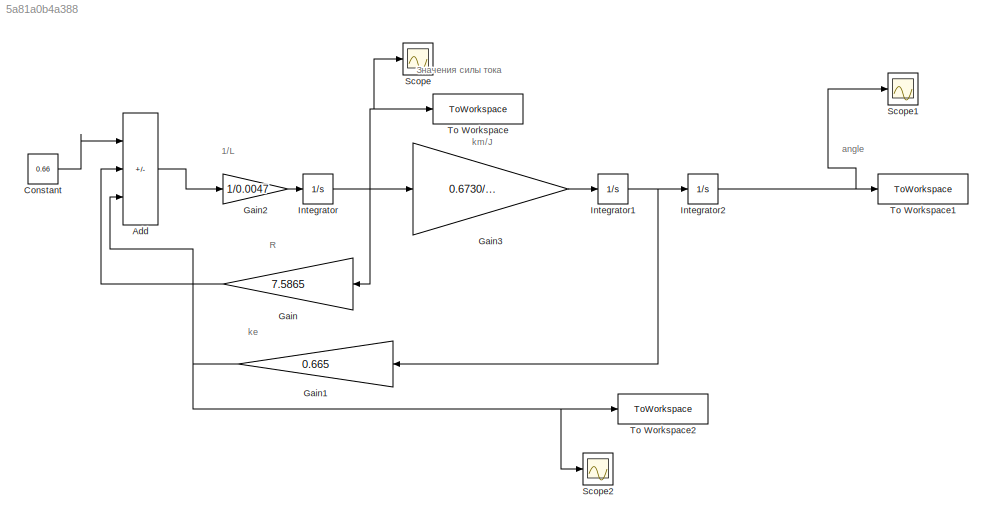
MODEL slx_5a81a0b4a388
KIND model
CONFIG AbsTol = auto
CONFIG EnableMultiTasking = off
CONFIG FixedStep = auto
CONFIG MaxStep = auto
CONFIG MinStep = auto
CONFIG RelTol = 1e-3
CONFIG SampleTimeConstraint = Unconstrained
CONFIG SolverName = VariableStepAuto
CONFIG StartTime = 0.0
CONFIG StopTime = 0.4
BLOCK [Sum] Add
  IconShape = rectangular
  Inputs = +--
  Ports = [3, 1]
BLOCK [Constant] Constant
  SampleTime = -1
  Value = 0.66
BLOCK [Gain] Gain
  Gain = 7.5865
  NameLocation = top
BLOCK [Gain] Gain1
  Gain = 0.665
  NameLocation = top
BLOCK [Gain] Gain2
  Gain = 1/0.0047
BLOCK [Gain] Gain3
  Gain = 0.6730/0.0023
BLOCK [Integrator] Integrator
  Ports = [1, 1]
BLOCK [Integrator] Integrator1
  Ports = [1, 1]
BLOCK [Integrator] Integrator2
  Ports = [1, 1]
BLOCK [Scope] Scope
  Floating = off
  NumInputPorts = 1
  Ports = [1]
  ScopeSpecificationString = Simulink.scopes.TimeScopeBlockCfg('CurrentConfiguration', extmgr.ConfigurationSet(extmgr.Configuration('Core','General UI',true),extmgr.Configuration('Core','Source UI',true),extmgr.Configuration('Sources','WiredSimulink',true),extmgr.Configuration('Visuals','Time Domain',true,'SerializedDisplays',{struct('MinYLimReal','-0.01039','MaxYLimReal','0.09277','YLabelReal','','MinYLimMag','0.00000','MaxY...<+1330ch>
BLOCK [Scope] Scope1
  Floating = off
  NumInputPorts = 1
  Ports = [1]
  ScopeSpecificationString = Simulink.scopes.TimeScopeBlockCfg('CurrentConfiguration', extmgr.ConfigurationSet(extmgr.Configuration('Core','General UI',true),extmgr.Configuration('Core','Source UI',true),extmgr.Configuration('Sources','WiredSimulink',true,'DataLoggingVariableName','ScopeData1'),extmgr.Configuration('Visuals','Time Domain',true,'SerializedDisplays',{struct('MinYLimReal','-3.54418','MaxYLimReal','0.3938','YLabe...<+1368ch>
BLOCK [Scope] Scope2
  Floating = off
  NumInputPorts = 1
  Ports = [1]
  ScopeSpecificationString = Simulink.scopes.TimeScopeBlockCfg('CurrentConfiguration', extmgr.ConfigurationSet(extmgr.Configuration('Core','General UI',true),extmgr.Configuration('Core','Source UI',true),extmgr.Configuration('Sources','WiredSimulink',true,'DataLoggingVariableName','ScopeData2'),extmgr.Configuration('Visuals','Time Domain',true,'SerializedDisplays',{struct('MinYLimReal','-0.15866','MaxYLimReal','1.4148','YLabe...<+1365ch>
BLOCK [ToWorkspace] To Workspace
  FixptAsFi = on
  MaxDataPoints = inf
  Ports = [1]
  SampleTime = -1
  SaveFormat = Timeseries
  VariableName = I
BLOCK [ToWorkspace] To Workspace1
  FixptAsFi = on
  MaxDataPoints = inf
  Ports = [1]
  SampleTime = -1
  SaveFormat = Timeseries
  VariableName = w
BLOCK [ToWorkspace] To Workspace2
  FixptAsFi = on
  MaxDataPoints = inf
  Ports = [1]
  SampleTime = -1
  SaveFormat = Timeseries
  VariableName = E
ANNOTATION (root): 1/L
ANNOTATION (root): R
ANNOTATION (root): angle
ANNOTATION (root): ke
ANNOTATION (root): km/J
ANNOTATION (root): Значения силы тока
LINE Add:1 -> Gain2:1
LINE Constant:1 -> Add:1
NET Gain1:1 -> Add:3, Scope2:1, To Workspace2:1
LINE Gain2:1 -> Integrator:1
LINE Gain3:1 -> Integrator1:1
LINE Gain:1 -> Add:2
NET Integrator1:1 -> Gain1:1, Integrator2:1
NET Integrator2:1 -> Scope1:1, To Workspace1:1
NET Integrator:1 -> Gain3:1, Gain:1, Scope:1, To Workspace:1
note: NET lines group one-source signal fan-out (src -> all destinations, sorted); 1:1 wires keep LINE
